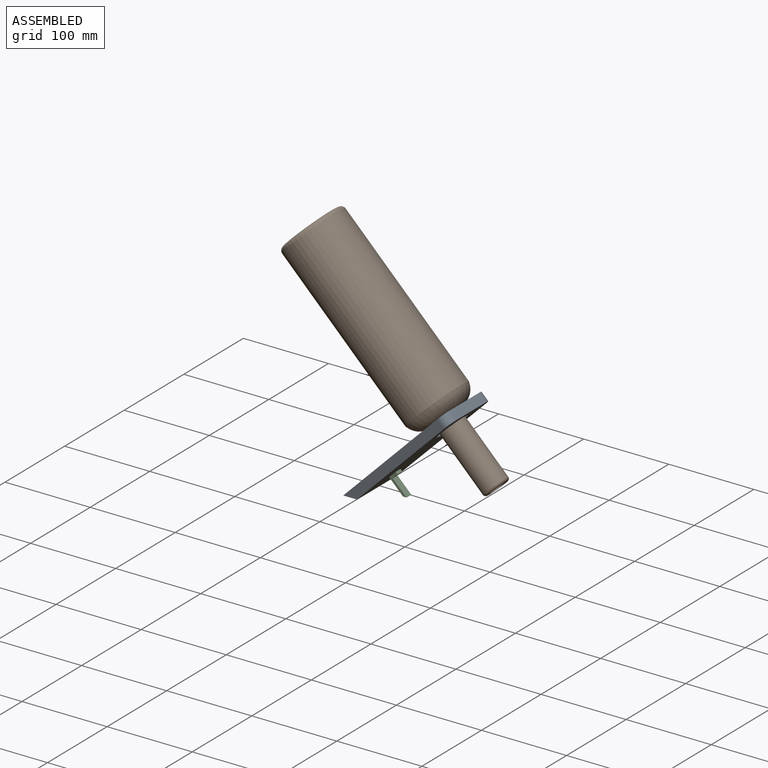
[diagram: assembled view]
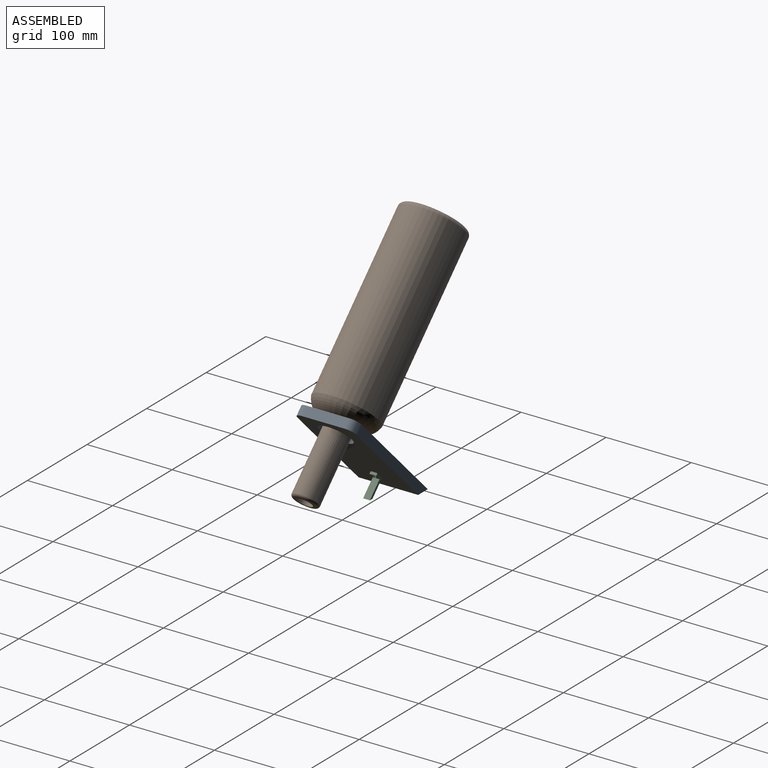
[diagram: assembled view, second angle]
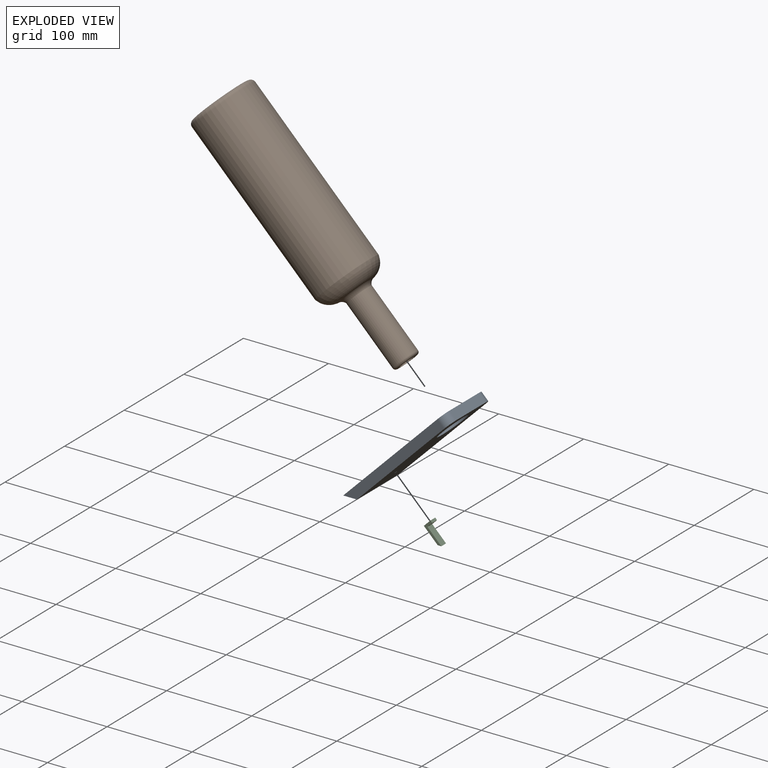
[diagram: exploded view]
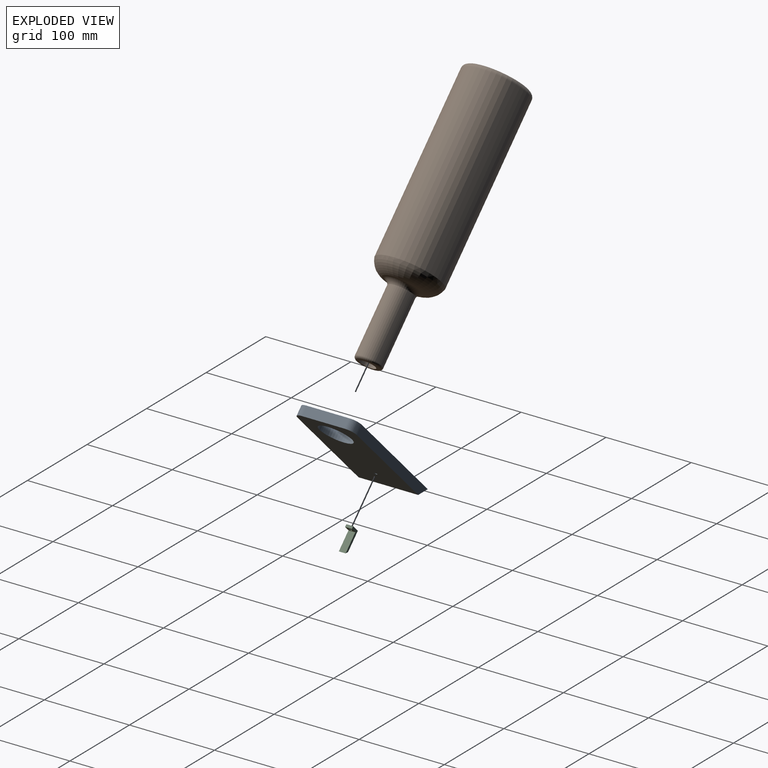
[diagram: exploded view, second angle]
ASSEMBLY  parts=3 mates=3
PART A: 14 faces, bbox 126.3x70.6x121.4 mm
  f0: plane 50x8mm, normal (0.71,0,0.71), area 565.7mm2, adj f1,f3,f9,f10
  f1: plane 117.64x117.64mm, normal (-0.71,0,0.71), area 9464.7mm2, adj f0,f2,f4,f5,f9,f10,f11,f12
  f2: plane 70.63x16.63mm, normal (0,0,-1), area 1100mm2, adj f1,f3,f4,f5,f12,f13
  f3: plane 109.64x109.64mm, normal (0.71,0,-0.71), area 9669.4mm2, adj f0,f2,f4,f5,f6,f7,f9,f10
  f4: plane 118.57x110.57mm, normal (0,-1,0), area 1705.1mm2, adj f1,f2,f3,f10
  f5: plane 118.57x110.57mm, normal (0,1,0), area 1705.1mm2, adj f1,f2,f3,f9
  f6: cylinder r=19mm len=38mm, axis (0.71,0,-0.71), area 515mm2, adj f3,f11
  f7: cylinder r=1.5mm len=7.07mm, axis (0.71,0,-0.71), area 66mm2, adj f3,f8
  f8: plane 3x2.12mm, normal (0.71,0,-0.71), area 7.1mm2, adj f7
  f9: cylinder r=10mm len=15.07mm, axis (-0.71,0,0.71), area 177.7mm2, adj f0,f1,f3,f5
  f10: cylinder r=10mm len=15.07mm, axis (0.71,0,-0.71), area 177.7mm2, adj f0,f1,f3,f4
  f11: torus R=26mm, axis (-0.71,0,0.71), area 1488.4mm2, adj f1,f6
  f12: cylinder r=1.5mm len=8.13mm, axis (-0.71,0,0.71), area 66mm2, adj f1,f2
  f13: cylinder r=1.5mm len=8.13mm, axis (-0.71,0,0.71), area 66mm2, adj f1,f2
PART B: 13 faces, bbox 81.2x81.2x310 mm
  f0: cylinder r=37.5mm len=205mm, axis (0,0,-1), area 48302mm2, adj f5,f7
  f1: plane 65x65mm, normal (0,0,-1), area 3318.3mm2, adj f7
  f2: plane 24x24mm, normal (0,0,1), area 197.9mm2, adj f6,f10
  f3: cylinder r=15mm len=77mm, axis (0,0,-1), area 7257.1mm2, adj f4,f6
  f4: torus R=22.5mm, axis (0,0,-1), area 856.5mm2, adj f3,f5
  f5: torus R=18.09mm, axis (0,0,-1), area 4612.4mm2, adj f0,f4
  f6: torus R=12mm, axis (0,0,1), area 411.9mm2, adj f2,f3
  f7: torus R=32.5mm, axis (0,0,1), area 1760.9mm2, adj f0,f1
  f8: cylinder r=31.5mm len=203.2mm, axis (0,0,-1), area 40216.7mm2, adj f9,f12
  f9: plane 63x63mm, normal (0,0,1), area 3117.2mm2, adj f8
  f10: cylinder r=9mm len=80.92mm, axis (0,0,-1), area 4576mm2, adj f2,f11
  f11: torus R=22.5mm, axis (0,0,-1), area 1288.7mm2, adj f10,f12
  f12: torus R=18.09mm, axis (0,0,-1), area 2731.2mm2, adj f8,f11
PART C: 9 faces, bbox 20.5x8x24 mm
  f0: plane 8x7.78mm, normal (-0.71,0,0.71), area 75.4mm2, adj f1,f5,f6,f7,f8
  f1: plane 16.26x16.26mm, normal (-0.71,0,-0.71), area 184mm2, adj f0,f2,f6,f7
  f2: plane 8x4.24mm, normal (0,0,-1), area 33.9mm2, adj f1,f3,f6,f7
  f3: plane 16.26x16.26mm, normal (0.71,0,0.71), area 184mm2, adj f2,f4,f6,f7
  f4: plane 8x5.66mm, normal (0.71,0,-0.71), area 51.4mm2, adj f3,f5,f6,f7,f8
  f5: plane 8x2.12mm, normal (0.71,0,0.71), area 24mm2, adj f0,f4,f6,f7
  f6: plane 24.04x20.51mm, normal (0,-1,0), area 97.5mm2, adj f0,f1,f2,f3,f4,f5
  f7: plane 24.04x20.51mm, normal (0,1,0), area 97.5mm2, adj f0,f1,f2,f3,f4,f5
  f8: cylinder r=2mm len=4.95mm, axis (0.71,0,-0.71), area 37.7mm2, adj f0,f4
PLACE A t=(1.03,0,0)mm
PLACE B rot(axis=(0,1,0),135deg) t=(-70.46,0,255.34)mm
PLACE C t=(1.03,0,0)mm
MATE fastened C.f8 <-> A.f7  axis (-0.71,0,0.71) through (29.25,0,21.21)mm
MATE revolute B.f0 <-> A.f11  axis (-0.71,0,0.71) through (89.91,0,94.97)mm
MATE slider B.f0 <-> A.f11  axis (-0.71,0,0.71) through (119.4,0,65.49)mm
